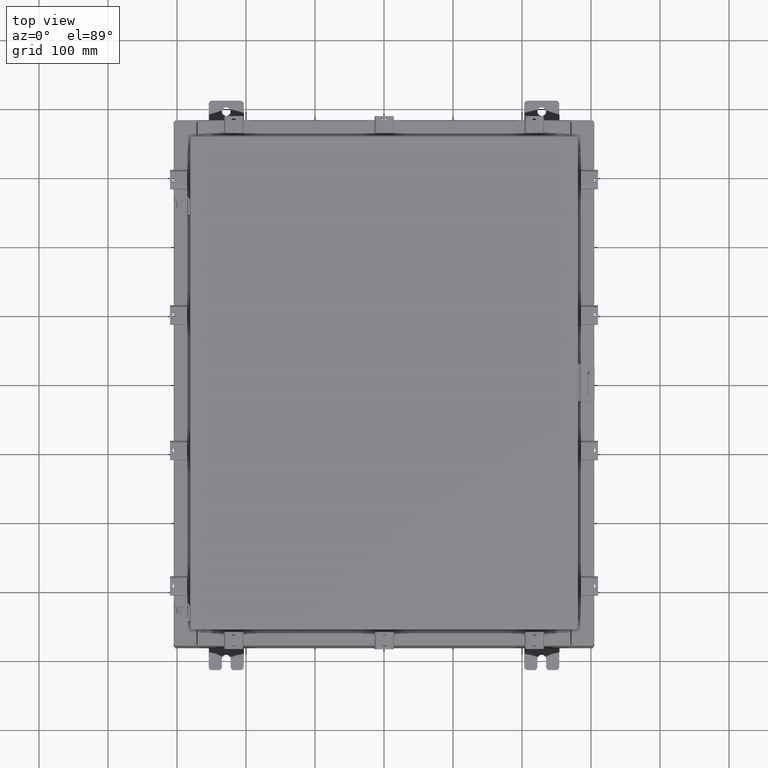
[diagram: clean part render]
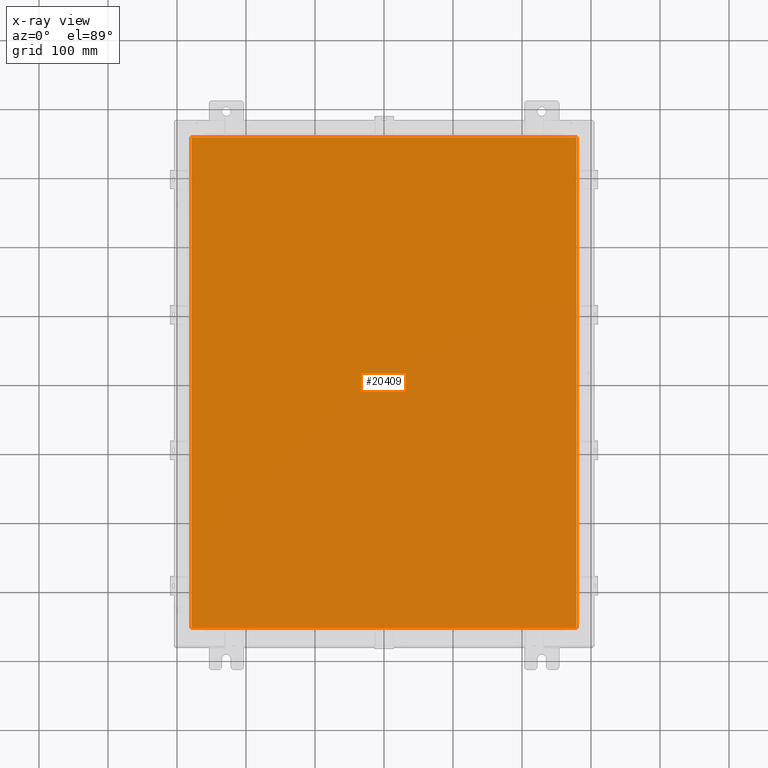
[diagram: x-ray — body ghosted, one internal face saturated and labeled with its STEP entity id]
A machine part, top view, then the same camera in x-ray: the body is ghosted and one INTERNAL B-rep face — a face not visible from any outside direction — is saturated and labeled: STEP entity #20409.
In plain terms, the highlighted planar face has unit normal (0, 0, -1).
Its self-contained STEP definition (entity closure, byte-faithful):
#836 = LINE ( 'NONE', #8663, #14561 ) ;
#1384 = PLANE ( 'NONE',  #15237 ) ;
#2474 = VECTOR ( 'NONE', #19993, 39.37007874015748100 ) ;
#3113 = EDGE_CURVE ( 'NONE', #16602, #7414, #836, .T. ) ;
#4776 = EDGE_CURVE ( 'NONE', #8703, #19032, #20919, .T. ) ;
#5658 = EDGE_CURVE ( 'NONE', #7414, #8703, #9826, .T. ) ;
#5673 = EDGE_LOOP ( 'NONE', ( #21027, #22297, #14297, #18931 ) ) ;
#6208 = CARTESIAN_POINT ( 'NONE',  ( 10.99030000000000000, -14.00629999999999800, -0.07470000000000000300 ) ) ;
#6854 = EDGE_CURVE ( 'NONE', #19032, #16602, #21791, .T. ) ;
#7414 = VERTEX_POINT ( 'NONE', #6208 ) ;
#8427 = DIRECTION ( 'NONE',  ( 1.000000000000000000, -0.0000000000000000000, -0.0000000000000000000 ) ) ;
#8611 = DIRECTION ( 'NONE',  ( 0.0000000000000000000, 0.0000000000000000000, -1.000000000000000000 ) ) ;
#8663 = CARTESIAN_POINT ( 'NONE',  ( -10.99029999999999600, -14.00629999999999800, -0.07470000000000019700 ) ) ;
#8703 = VERTEX_POINT ( 'NONE', #18108 ) ;
#9064 = DIRECTION ( 'NONE',  ( 0.0000000000000000000, -1.000000000000000000, 0.0000000000000000000 ) ) ;
#9573 = CARTESIAN_POINT ( 'NONE',  ( 10.99030000000000000, -14.00629999999999800, -0.07470000000000019700 ) ) ;
#9826 = LINE ( 'NONE', #9573, #18808 ) ;
#11264 = CARTESIAN_POINT ( 'NONE',  ( -10.99030000000000000, -14.00629999999999600, -0.07470000000000000300 ) ) ;
#11767 = CARTESIAN_POINT ( 'NONE',  ( -10.99030000000000000, 14.00629999999999800, -0.07470000000000000300 ) ) ;
#12858 = VECTOR ( 'NONE', #9064, 39.37007874015748100 ) ;
#14297 = ORIENTED_EDGE ( 'NONE', *, *, #6854, .F. ) ;
#14561 = VECTOR ( 'NONE', #8427, 39.37007874015748100 ) ;
#15237 = AXIS2_PLACEMENT_3D ( 'NONE', #19328, #8611, #21070 ) ;
#16602 = VERTEX_POINT ( 'NONE', #11264 ) ;
#17059 = FACE_OUTER_BOUND ( 'NONE', #5673, .T. ) ;
#17988 = CARTESIAN_POINT ( 'NONE',  ( -10.99030000000000000, 14.00630000000000100, -0.07470000000000019700 ) ) ;
#18108 = CARTESIAN_POINT ( 'NONE',  ( 10.99030000000000000, 14.00629999999999800, -0.07470000000000000300 ) ) ;
#18808 = VECTOR ( 'NONE', #19597, 39.37007874015748100 ) ;
#18931 = ORIENTED_EDGE ( 'NONE', *, *, #4776, .F. ) ;
#19032 = VERTEX_POINT ( 'NONE', #11767 ) ;
#19328 = CARTESIAN_POINT ( 'NONE',  ( 0.0000000000000000000, 0.0000000000000000000, -0.07470000000000000300 ) ) ;
#19597 = DIRECTION ( 'NONE',  ( 0.0000000000000000000, 1.000000000000000000, 0.0000000000000000000 ) ) ;
#19993 = DIRECTION ( 'NONE',  ( -1.000000000000000000, -0.0000000000000000000, -0.0000000000000000000 ) ) ;
#20409 = ADVANCED_FACE ( 'NONE', ( #17059 ), #1384, .T. ) ;
#20680 = CARTESIAN_POINT ( 'NONE',  ( 10.99030000000000000, 14.00629999999999800, -0.07470000000000019700 ) ) ;
#20919 = LINE ( 'NONE', #20680, #2474 ) ;
#21027 = ORIENTED_EDGE ( 'NONE', *, *, #5658, .F. ) ;
#21070 = DIRECTION ( 'NONE',  ( -1.000000000000000000, 0.0000000000000000000, -0.0000000000000000000 ) ) ;
#21791 = LINE ( 'NONE', #17988, #12858 ) ;
#22297 = ORIENTED_EDGE ( 'NONE', *, *, #3113, .F. ) ;